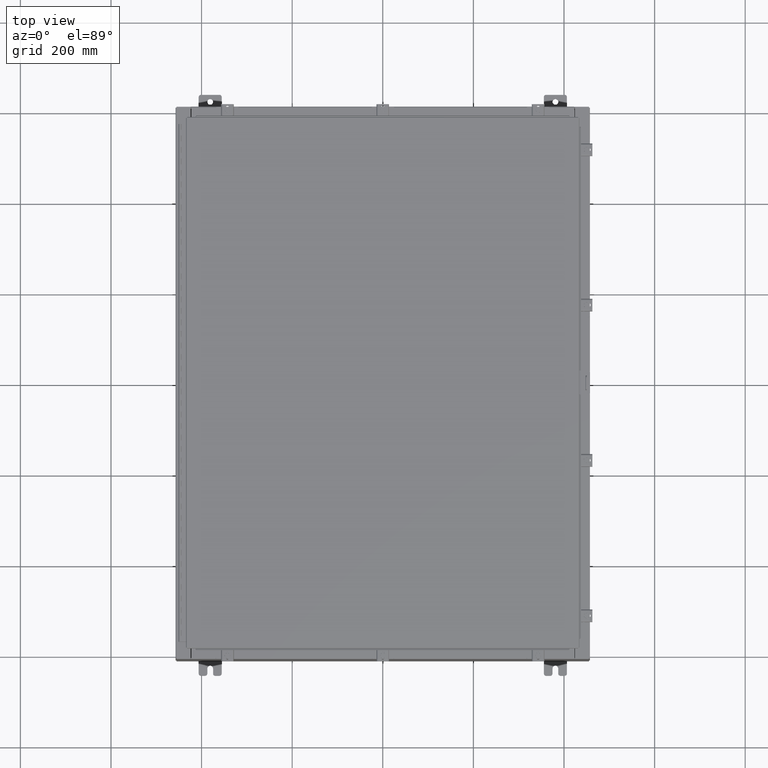
[diagram: clean part render]
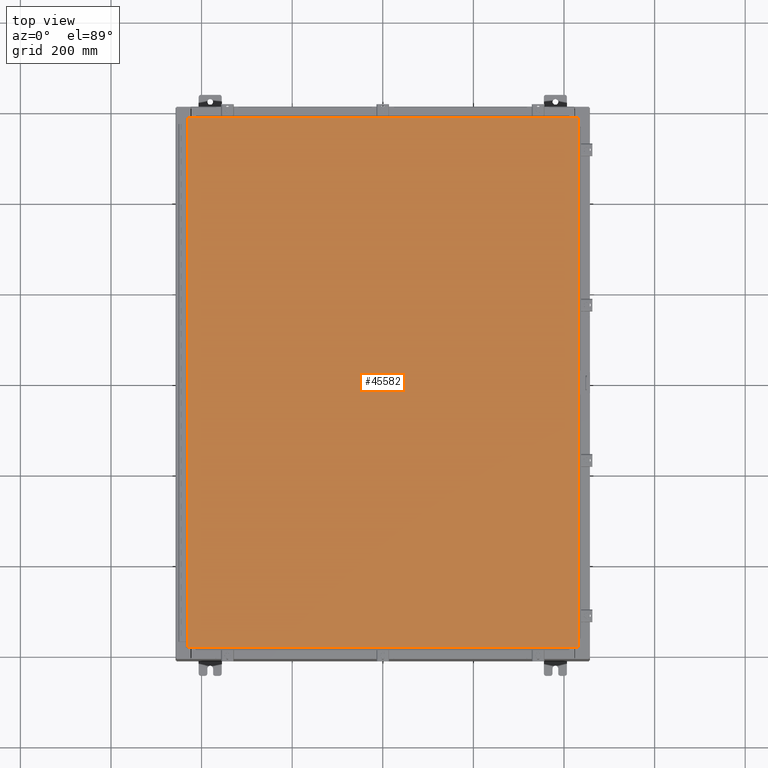
[diagram: same view with one face highlighted and labeled with its STEP entity id]
A machine part, top view. The second image highlights one B-rep face of the part: STEP entity #45582.
In plain terms, the highlighted planar face has unit normal (0, 0, -1).
Its self-contained STEP definition (entity closure, byte-faithful):
#32 = CARTESIAN_POINT ( 'NONE',  ( -16.99029999999999800, -23.00630000000000300, 1.946441695485787500E-015 ) ) ;
#161 = VERTEX_POINT ( 'NONE', #24421 ) ;
#1504 = CARTESIAN_POINT ( 'NONE',  ( 16.99029999999999800, 23.00630000000001000, 1.946441695485787500E-015 ) ) ;
#2612 = ORIENTED_EDGE ( 'NONE', *, *, #32618, .T. ) ;
#4854 = CARTESIAN_POINT ( 'NONE',  ( 16.99029999999999800, 23.00630000000001000, 1.946441695485787500E-015 ) ) ;
#5635 = DIRECTION ( 'NONE',  ( -1.000000000000000000, -0.0000000000000000000, -0.0000000000000000000 ) ) ;
#8443 = LINE ( 'NONE', #19899, #40511 ) ;
#8970 = VERTEX_POINT ( 'NONE', #4854 ) ;
#13598 = EDGE_CURVE ( 'NONE', #161, #8970, #42704, .T. ) ;
#15701 = ORIENTED_EDGE ( 'NONE', *, *, #13598, .T. ) ;
#16392 = EDGE_CURVE ( 'NONE', #26215, #47092, #8443, .T. ) ;
#16438 = ORIENTED_EDGE ( 'NONE', *, *, #16392, .T. ) ;
#17750 = VECTOR ( 'NONE', #24854, 39.37007874015748100 ) ;
#19899 = CARTESIAN_POINT ( 'NONE',  ( -16.99029999999998400, 23.00630000000001000, -1.297627796990525000E-015 ) ) ;
#20444 = VECTOR ( 'NONE', #47588, 39.37007874015748100 ) ;
#21419 = AXIS2_PLACEMENT_3D ( 'NONE', #21441, #21600, #50808 ) ;
#21441 = CARTESIAN_POINT ( 'NONE',  ( 0.0000000000000000000, 0.0000000000000000000, 0.0000000000000000000 ) ) ;
#21600 = DIRECTION ( 'NONE',  ( 0.0000000000000000000, 0.0000000000000000000, -1.000000000000000000 ) ) ;
#22009 = EDGE_LOOP ( 'NONE', ( #2612, #15701, #32830, #16438 ) ) ;
#24421 = CARTESIAN_POINT ( 'NONE',  ( 16.99029999999999800, -23.00630000000000300, -2.048885995248197400E-016 ) ) ;
#24854 = DIRECTION ( 'NONE',  ( 1.000000000000000000, -0.0000000000000000000, -0.0000000000000000000 ) ) ;
#26030 = VECTOR ( 'NONE', #5635, 39.37007874015748100 ) ;
#26215 = VERTEX_POINT ( 'NONE', #38590 ) ;
#28641 = LINE ( 'NONE', #1504, #26030 ) ;
#32618 = EDGE_CURVE ( 'NONE', #47092, #161, #41332, .T. ) ;
#32830 = ORIENTED_EDGE ( 'NONE', *, *, #40351, .T. ) ;
#38590 = CARTESIAN_POINT ( 'NONE',  ( -16.99029999999998400, 23.00630000000001000, -1.297627796990525000E-015 ) ) ;
#40351 = EDGE_CURVE ( 'NONE', #8970, #26215, #28641, .T. ) ;
#40511 = VECTOR ( 'NONE', #49122, 39.37007874015748100 ) ;
#41332 = LINE ( 'NONE', #32, #17750 ) ;
#42704 = LINE ( 'NONE', #43393, #20444 ) ;
#43268 = FACE_OUTER_BOUND ( 'NONE', #22009, .T. ) ;
#43393 = CARTESIAN_POINT ( 'NONE',  ( 16.99029999999999800, -23.00630000000000300, -2.048885995248197400E-016 ) ) ;
#43660 = CARTESIAN_POINT ( 'NONE',  ( -16.99029999999999800, -23.00630000000000300, 1.946441695485787500E-015 ) ) ;
#45582 = ADVANCED_FACE ( 'NONE', ( #43268 ), #46653, .F. ) ;
#46653 = PLANE ( 'NONE',  #21419 ) ;
#47092 = VERTEX_POINT ( 'NONE', #43660 ) ;
#47588 = DIRECTION ( 'NONE',  ( 0.0000000000000000000, 1.000000000000000000, 0.0000000000000000000 ) ) ;
#49122 = DIRECTION ( 'NONE',  ( 0.0000000000000000000, -1.000000000000000000, 0.0000000000000000000 ) ) ;
#50808 = DIRECTION ( 'NONE',  ( -1.000000000000000000, 0.0000000000000000000, -0.0000000000000000000 ) ) ;